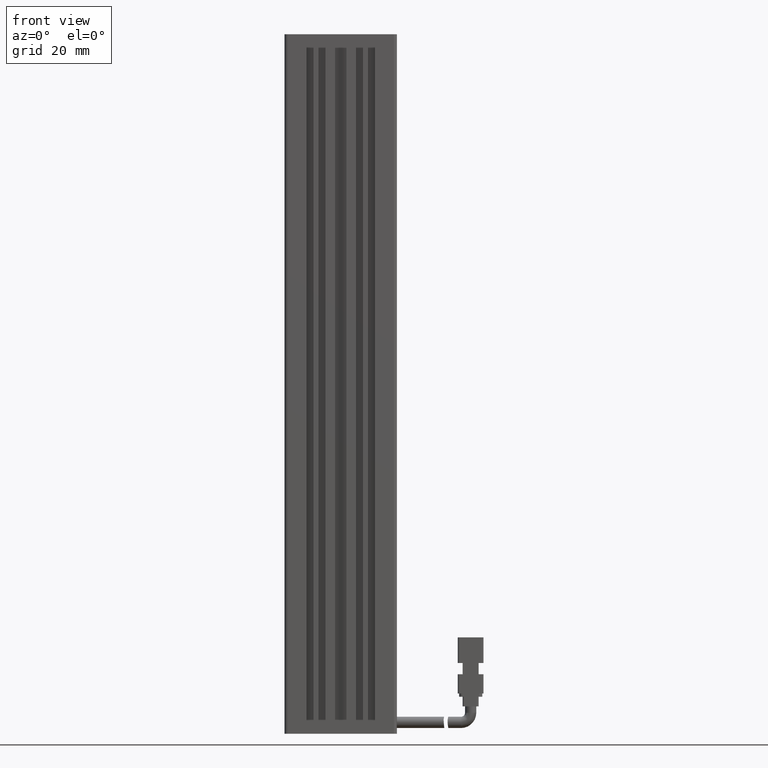
[diagram: clean part render]
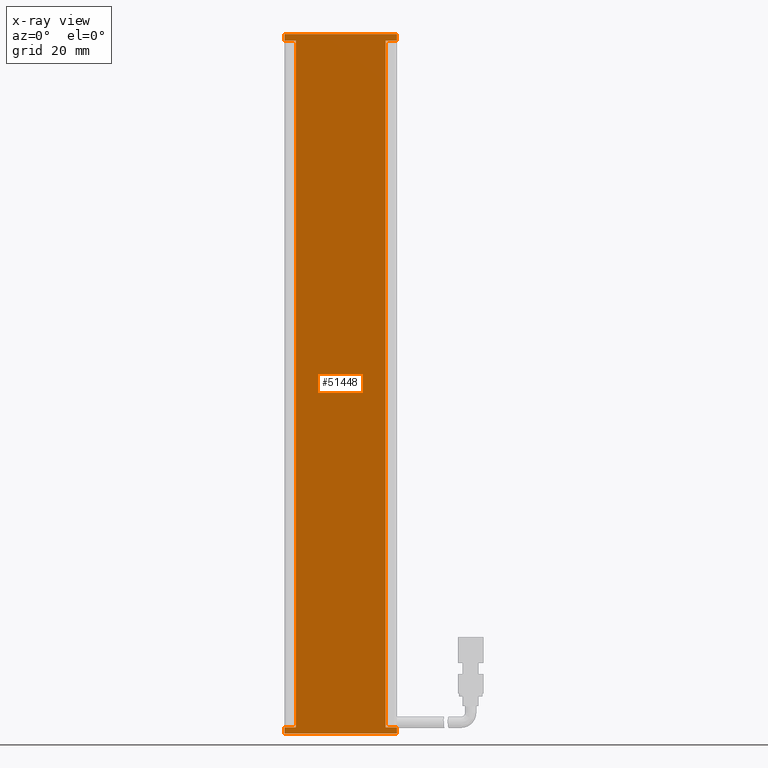
[diagram: x-ray — body ghosted, one internal face saturated and labeled with its STEP entity id]
A machine part, front view, then the same camera in x-ray: the body is ghosted and one INTERNAL B-rep face — a face not visible from any outside direction — is saturated and labeled: STEP entity #51448.
In plain terms, the highlighted planar face has unit normal (0, -1, 0).
Its self-contained STEP definition (entity closure, byte-faithful):
#2344 = LINE ( 'NONE', #83581, #15444 ) ;
#2760 = EDGE_CURVE ( 'NONE', #19814, #30431, #37851, .T. ) ;
#3887 = VECTOR ( 'NONE', #82368, 1000.000000000000000 ) ;
#4517 = VECTOR ( 'NONE', #76365, 1000.000000000000000 ) ;
#4921 = DIRECTION ( 'NONE',  ( 1.000000000000000000, 1.239088197126290600E-016, 0.0000000000000000000 ) ) ;
#7965 = LINE ( 'NONE', #33677, #80215 ) ;
#9280 = CARTESIAN_POINT ( 'NONE',  ( 23.42537974683542500, 19.49073232304836600, -6.000000000000005300 ) ) ;
#11313 = EDGE_CURVE ( 'NONE', #71436, #39539, #54490, .T. ) ;
#11775 = CARTESIAN_POINT ( 'NONE',  ( 23.42537974683542100, 19.49073232304836600, -224.0000000000000000 ) ) ;
#14730 = LINE ( 'NONE', #18933, #73904 ) ;
#15444 = VECTOR ( 'NONE', #47799, 1000.000000000000000 ) ;
#15478 = CARTESIAN_POINT ( 'NONE',  ( 58.42537974683542500, 19.49073232304837000, -8.000000000000007100 ) ) ;
#17276 = EDGE_CURVE ( 'NONE', #78212, #85587, #2344, .T. ) ;
#17758 = CARTESIAN_POINT ( 'NONE',  ( 54.92537974683542500, 19.49073232304837000, -222.0000000000000000 ) ) ;
#18710 = VECTOR ( 'NONE', #57677, 1000.000000000000000 ) ;
#18933 = CARTESIAN_POINT ( 'NONE',  ( 40.92537974683542500, 19.49073232304837000, -8.000000000000007100 ) ) ;
#19680 = ORIENTED_EDGE ( 'NONE', *, *, #62533, .F. ) ;
#19814 = VERTEX_POINT ( 'NONE', #15478 ) ;
#20898 = ORIENTED_EDGE ( 'NONE', *, *, #66744, .F. ) ;
#21348 = ORIENTED_EDGE ( 'NONE', *, *, #2760, .F. ) ;
#21838 = CARTESIAN_POINT ( 'NONE',  ( 40.92537974683542500, 19.49073232304837000, -6.000000000000005300 ) ) ;
#23003 = LINE ( 'NONE', #9280, #50425 ) ;
#25085 = EDGE_CURVE ( 'NONE', #39539, #46305, #62226, .T. ) ;
#26522 = DIRECTION ( 'NONE',  ( -1.000000000000000000, -1.239088197126290600E-016, -0.0000000000000000000 ) ) ;
#27118 = PLANE ( 'NONE',  #52484 ) ;
#27431 = CARTESIAN_POINT ( 'NONE',  ( 40.92537974683542500, 19.49073232304837000, -222.0000000000000000 ) ) ;
#28449 = VECTOR ( 'NONE', #70923, 1000.000000000000000 ) ;
#30280 = ORIENTED_EDGE ( 'NONE', *, *, #25085, .F. ) ;
#30431 = VERTEX_POINT ( 'NONE', #77536 ) ;
#30480 = CARTESIAN_POINT ( 'NONE',  ( 58.42537974683542500, 19.49073232304837000, -6.000000000000005300 ) ) ;
#31310 = CARTESIAN_POINT ( 'NONE',  ( 26.92537974683542100, 19.49073232304836600, -8.000000000000007100 ) ) ;
#31521 = EDGE_CURVE ( 'NONE', #85587, #77499, #68469, .T. ) ;
#32644 = VECTOR ( 'NONE', #46681, 1000.000000000000000 ) ;
#33526 = CARTESIAN_POINT ( 'NONE',  ( 26.92537974683542100, 19.49073232304836600, -222.0000000000000000 ) ) ;
#33677 = CARTESIAN_POINT ( 'NONE',  ( 40.92537974683542500, 19.49073232304837000, -224.0000000000000000 ) ) ;
#34146 = CARTESIAN_POINT ( 'NONE',  ( 58.42537974683542500, 19.49073232304837000, -221.9999999999999700 ) ) ;
#34194 = VERTEX_POINT ( 'NONE', #46867 ) ;
#36177 = ORIENTED_EDGE ( 'NONE', *, *, #77540, .F. ) ;
#36298 = VERTEX_POINT ( 'NONE', #90035 ) ;
#36773 = EDGE_CURVE ( 'NONE', #70362, #36298, #7965, .T. ) ;
#37851 = LINE ( 'NONE', #71819, #58663 ) ;
#38373 = ORIENTED_EDGE ( 'NONE', *, *, #17276, .F. ) ;
#39539 = VERTEX_POINT ( 'NONE', #17758 ) ;
#40818 = CARTESIAN_POINT ( 'NONE',  ( 23.42537974683542100, 19.49073232304836600, -6.000000000000005300 ) ) ;
#41197 = DIRECTION ( 'NONE',  ( 1.000000000000000000, 1.239088197126290600E-016, 0.0000000000000000000 ) ) ;
#43889 = EDGE_LOOP ( 'NONE', ( #38373, #36177, #20898, #21348, #86751, #30280, #50413, #60800, #72700, #62117, #19680, #63732 ) ) ;
#45846 = VECTOR ( 'NONE', #26522, 1000.000000000000000 ) ;
#46305 = VERTEX_POINT ( 'NONE', #67508 ) ;
#46681 = DIRECTION ( 'NONE',  ( -0.0000000000000000000, 0.0000000000000000000, 1.000000000000000000 ) ) ;
#46867 = CARTESIAN_POINT ( 'NONE',  ( 23.42537974683542100, 19.49073232304836600, -222.0000000000000000 ) ) ;
#47799 = DIRECTION ( 'NONE',  ( 1.000000000000000000, 1.239088197126290600E-016, 0.0000000000000000000 ) ) ;
#48814 = DIRECTION ( 'NONE',  ( 1.239088197126290600E-016, -1.000000000000000000, 0.0000000000000000000 ) ) ;
#49183 = LINE ( 'NONE', #27431, #45846 ) ;
#50413 = ORIENTED_EDGE ( 'NONE', *, *, #11313, .F. ) ;
#50425 = VECTOR ( 'NONE', #72331, 1000.000000000000000 ) ;
#51448 = ADVANCED_FACE ( 'NONE', ( #81177 ), #27118, .F. ) ;
#51740 = EDGE_CURVE ( 'NONE', #34194, #70362, #23003, .T. ) ;
#52484 = AXIS2_PLACEMENT_3D ( 'NONE', #90111, #48814, #41197 ) ;
#54490 = LINE ( 'NONE', #60438, #61053 ) ;
#54822 = LINE ( 'NONE', #40818, #4517 ) ;
#57677 = DIRECTION ( 'NONE',  ( -0.0000000000000000000, 0.0000000000000000000, 1.000000000000000000 ) ) ;
#58663 = VECTOR ( 'NONE', #86128, 1000.000000000000000 ) ;
#60438 = CARTESIAN_POINT ( 'NONE',  ( 40.92537974683542500, 19.49073232304837000, -222.0000000000000000 ) ) ;
#60800 = ORIENTED_EDGE ( 'NONE', *, *, #70204, .F. ) ;
#61053 = VECTOR ( 'NONE', #68142, 1000.000000000000000 ) ;
#61467 = DIRECTION ( 'NONE',  ( 1.000000000000000000, 1.239088197126290600E-016, 0.0000000000000000000 ) ) ;
#62117 = ORIENTED_EDGE ( 'NONE', *, *, #51740, .F. ) ;
#62226 = LINE ( 'NONE', #88327, #32644 ) ;
#62533 = EDGE_CURVE ( 'NONE', #77499, #34194, #49183, .T. ) ;
#63732 = ORIENTED_EDGE ( 'NONE', *, *, #31521, .F. ) ;
#66744 = EDGE_CURVE ( 'NONE', #30431, #88267, #70116, .T. ) ;
#67508 = CARTESIAN_POINT ( 'NONE',  ( 54.92537974683542500, 19.49073232304837000, -8.000000000000007100 ) ) ;
#68142 = DIRECTION ( 'NONE',  ( -1.000000000000000000, -1.239088197126290600E-016, -0.0000000000000000000 ) ) ;
#68469 = LINE ( 'NONE', #75673, #3887 ) ;
#70116 = LINE ( 'NONE', #21838, #28449 ) ;
#70204 = EDGE_CURVE ( 'NONE', #36298, #71436, #88846, .T. ) ;
#70362 = VERTEX_POINT ( 'NONE', #11775 ) ;
#70923 = DIRECTION ( 'NONE',  ( -1.000000000000000000, -1.239088197126290600E-016, -0.0000000000000000000 ) ) ;
#71333 = CARTESIAN_POINT ( 'NONE',  ( 23.42537974683542100, 19.49073232304836600, -8.000000000000007100 ) ) ;
#71436 = VERTEX_POINT ( 'NONE', #34146 ) ;
#71819 = CARTESIAN_POINT ( 'NONE',  ( 58.42537974683542500, 19.49073232304837000, -6.000000000000005300 ) ) ;
#72331 = DIRECTION ( 'NONE',  ( 0.0000000000000000000, -0.0000000000000000000, -1.000000000000000000 ) ) ;
#72700 = ORIENTED_EDGE ( 'NONE', *, *, #36773, .F. ) ;
#73904 = VECTOR ( 'NONE', #4921, 1000.000000000000000 ) ;
#75673 = CARTESIAN_POINT ( 'NONE',  ( 26.92537974683542100, 19.49073232304836600, -6.000000000000005300 ) ) ;
#76365 = DIRECTION ( 'NONE',  ( 0.0000000000000000000, -0.0000000000000000000, -1.000000000000000000 ) ) ;
#77499 = VERTEX_POINT ( 'NONE', #33526 ) ;
#77536 = CARTESIAN_POINT ( 'NONE',  ( 58.42537974683542500, 19.49073232304837000, -6.000000000000005300 ) ) ;
#77540 = EDGE_CURVE ( 'NONE', #88267, #78212, #54822, .T. ) ;
#78212 = VERTEX_POINT ( 'NONE', #71333 ) ;
#80215 = VECTOR ( 'NONE', #61467, 1000.000000000000000 ) ;
#80598 = EDGE_CURVE ( 'NONE', #46305, #19814, #14730, .T. ) ;
#81177 = FACE_OUTER_BOUND ( 'NONE', #43889, .T. ) ;
#82368 = DIRECTION ( 'NONE',  ( 0.0000000000000000000, -0.0000000000000000000, -1.000000000000000000 ) ) ;
#83581 = CARTESIAN_POINT ( 'NONE',  ( 40.92537974683542500, 19.49073232304837000, -8.000000000000007100 ) ) ;
#85587 = VERTEX_POINT ( 'NONE', #31310 ) ;
#86128 = DIRECTION ( 'NONE',  ( -0.0000000000000000000, 0.0000000000000000000, 1.000000000000000000 ) ) ;
#86751 = ORIENTED_EDGE ( 'NONE', *, *, #80598, .F. ) ;
#88267 = VERTEX_POINT ( 'NONE', #89373 ) ;
#88327 = CARTESIAN_POINT ( 'NONE',  ( 54.92537974683542500, 19.49073232304837000, -6.000000000000005300 ) ) ;
#88846 = LINE ( 'NONE', #30480, #18710 ) ;
#89373 = CARTESIAN_POINT ( 'NONE',  ( 23.42537974683542100, 19.49073232304836600, -6.000000000000005300 ) ) ;
#90035 = CARTESIAN_POINT ( 'NONE',  ( 58.42537974683542500, 19.49073232304837000, -224.0000000000000000 ) ) ;
#90111 = CARTESIAN_POINT ( 'NONE',  ( 40.92537974683542500, 19.49073232304837000, -6.000000000000005300 ) ) ;